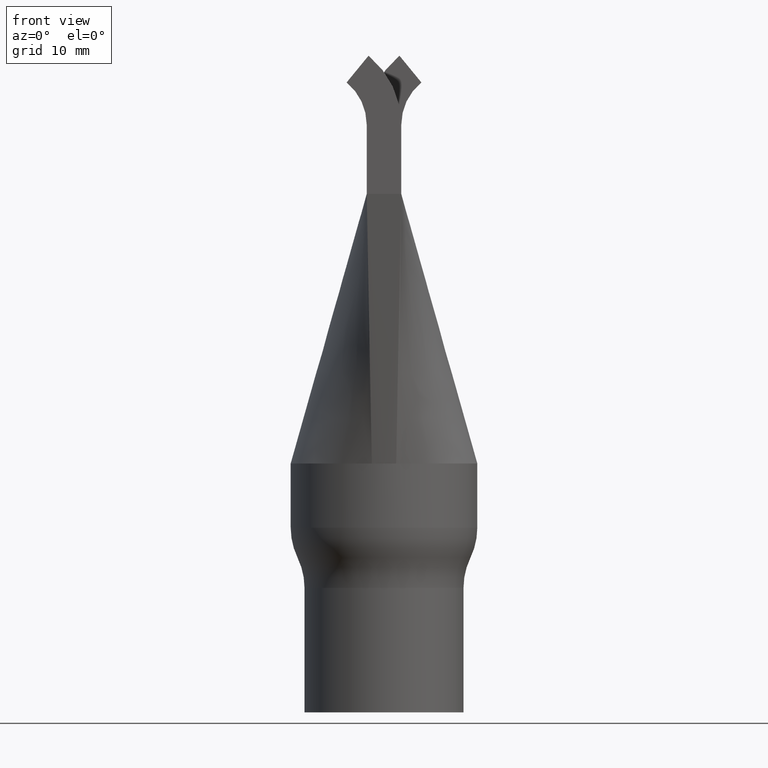
[diagram: clean part render]
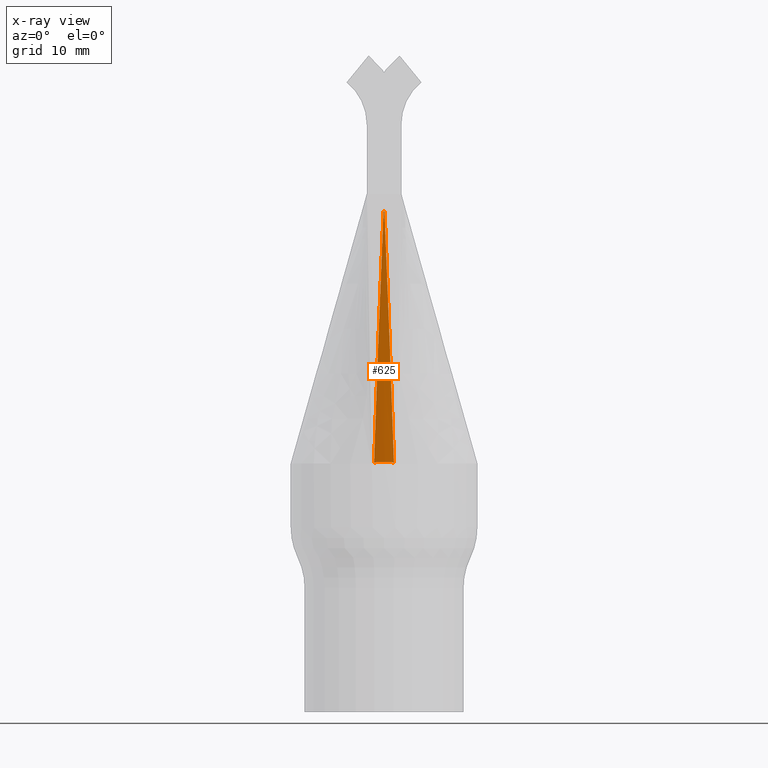
[diagram: x-ray — body ghosted, one internal face saturated and labeled with its STEP entity id]
A machine part, front view, then the same camera in x-ray: the body is ghosted and one INTERNAL B-rep face — a face not visible from any outside direction — is saturated and labeled: STEP entity #625.
In plain terms, the highlighted face is a freeform B-spline surface patch.
Its self-contained STEP definition (entity closure, byte-faithful):
#50 = CARTESIAN_POINT ( 'NONE',  ( 2.321615106192547200, -16.14736502562666900, 72.72473574889080800 ) ) ;
#106 = CARTESIAN_POINT ( 'NONE',  ( 1.719384111533413600, -12.62808548849466600, 48.22135070822230300 ) ) ;
#149 = CARTESIAN_POINT ( 'NONE',  ( -1.431531439504500000, -10.95882475798934600, 36.53796351132598400 ) ) ;
#161 = CARTESIAN_POINT ( 'NONE',  ( 1.413333491230777800, -10.87789478177494300, 35.96910463955476400 ) ) ;
#168 = CARTESIAN_POINT ( 'NONE',  ( 1.441852136286936500, -10.90509341624751000, 36.09030776148677700 ) ) ;
#473 = EDGE_LOOP ( 'NONE', ( #7619, #15773, #9632, #3063 ) ) ;
#625 = ADVANCED_FACE ( 'NONE', ( #7069 ), #13231, .F. ) ;
#719 = CARTESIAN_POINT ( 'NONE',  ( -2.166894006788201200, -16.14814254387894700, 72.72386519237017000 ) ) ;
#773 = CARTESIAN_POINT ( 'NONE',  ( -1.456329556163184200, -10.87224045734971500, 35.96964214111026300 ) ) ;
#823 = CARTESIAN_POINT ( 'NONE',  ( -1.271208810605728700, -10.89542364468774400, 35.96718643008043900 ) ) ;
#886 = CARTESIAN_POINT ( 'NONE',  ( -2.218469585927256300, -16.14789225880230800, 72.72414537951094400 ) ) ;
#935 = CARTESIAN_POINT ( 'NONE',  ( -2.373186391315689600, -16.14709474857392700, 72.72503843146532200 ) ) ;
#962 = CARTESIAN_POINT ( 'NONE',  ( 1.428495800141399700, -11.01814063073086000, 36.94112519827553600 ) ) ;
#981 = CARTESIAN_POINT ( 'NONE',  ( 1.301181299983906500, -10.89192834248433800, 35.96756888024632600 ) ) ;
#991 = CARTESIAN_POINT ( 'NONE',  ( -0.4826880595103361600, -10.99204035117396600, 36.17868429347084500 ) ) ;
#1006 = CARTESIAN_POINT ( 'NONE',  ( 0.07360767920296540400, -16.12265433952941500, 72.49999999999997200 ) ) ;
#1032 = CARTESIAN_POINT ( 'NONE',  ( 0.7287873620716958100, -10.94493745367367900, 35.96177075663486300 ) ) ;
#1082 = CARTESIAN_POINT ( 'NONE',  ( 1.224779746088823900, -12.66275040349328800, 48.21668933307088900 ) ) ;
#1137 = CARTESIAN_POINT ( 'NONE',  ( 1.651089961696522400, -16.15039620885026700, 72.72134333038130200 ) ) ;
#1191 = CARTESIAN_POINT ( 'NONE',  ( 1.738361626688563100, -12.62655219745722200, 48.22155730167699500 ) ) ;
#1197 = CARTESIAN_POINT ( 'NONE',  ( 0.9628086797302359800, -10.96043714089289300, 36.17865336242705600 ) ) ;
#1304 = CARTESIAN_POINT ( 'NONE',  ( 2.347400994588795700, -16.14723099717401000, 72.72488584053137100 ) ) ;
#1357 = CARTESIAN_POINT ( 'NONE',  ( 2.074456344173689600, -14.38529624166637600, 60.47334074095508800 ) ) ;
#1880 = CARTESIAN_POINT ( 'NONE',  ( -1.441852136287223200, -10.90509341624747300, 36.09030776148677700 ) ) ;
#1900 = CARTESIAN_POINT ( 'NONE',  ( -2.476594383371645900, -16.14653379043601300, 72.72565932857456500 ) ) ;
#1951 = CARTESIAN_POINT ( 'NONE',  ( -2.321615106193081400, -16.14736502562666900, 72.72473574889080800 ) ) ;
#1981 = CARTESIAN_POINT ( 'NONE',  ( 1.235793281833641000, -12.02237862484301300, 43.74246453546619800 ) ) ;
#2060 = CARTESIAN_POINT ( 'NONE',  ( -1.794514604572528900, -12.62183996273574300, 48.22220646863493000 ) ) ;
#2112 = CARTESIAN_POINT ( 'NONE',  ( -1.419478910769132600, -10.87709575968937000, 35.96921101892552700 ) ) ;
#2168 = CARTESIAN_POINT ( 'NONE',  ( -1.739985301849686100E-013, -12.69713648491714700, 48.21208690504057200 ) ) ;
#2217 = CARTESIAN_POINT ( 'NONE',  ( -0.6133598003290100500, -12.69058323954918100, 48.21296124772973700 ) ) ;
#2228 = CARTESIAN_POINT ( 'NONE',  ( -0.2419555311015224900, -10.99998358884605700, 36.17892452863836200 ) ) ;
#2269 = CARTESIAN_POINT ( 'NONE',  ( 1.377148476837168500, -12.65293182820197500, 48.21800816063365900 ) ) ;
#2323 = CARTESIAN_POINT ( 'NONE',  ( 1.960584347550206900, -16.14910811868461200, 72.72278443977353400 ) ) ;
#2375 = CARTESIAN_POINT ( 'NONE',  ( -1.624309777649698600, -14.40078074538607700, 60.47011979973081000 ) ) ;
#2399 = EDGE_CURVE ( 'NONE', #14735, #12513, #6368, .T. ) ;
#2425 = CARTESIAN_POINT ( 'NONE',  ( 1.437904232126725000, -10.87466809848976400, 35.96942658462247500 ) ) ;
#2466 = CARTESIAN_POINT ( 'NONE',  ( -1.093094096655873300, -12.58279181556009300, 47.58591685133841800 ) ) ;
#2477 = CARTESIAN_POINT ( 'NONE',  ( 1.785779653121713200, -12.62261708937675800, 48.22208776072553600 ) ) ;
#2527 = CARTESIAN_POINT ( 'NONE',  ( 1.681429081223114500, -12.63115207056955000, 48.22093752131291200 ) ) ;
#2639 = CARTESIAN_POINT ( 'NONE',  ( 1.331122331803721300, -10.88830940955974400, 35.96796488625823000 ) ) ;
#3063 = ORIENTED_EDGE ( 'NONE', *, *, #14423, .F. ) ;
#3103 = CARTESIAN_POINT ( 'NONE',  ( 0.07360767920296540400, -16.12265433952941500, 72.49999999999997200 ) ) ;
#3147 = CARTESIAN_POINT ( 'NONE',  ( -2.437668566931459500, -16.14674674696890100, 72.72542765894043300 ) ) ;
#3202 = CARTESIAN_POINT ( 'NONE',  ( -2.398971279997280900, -16.14695628121421200, 72.72519352145742700 ) ) ;
#3252 = CARTESIAN_POINT ( 'NONE',  ( -1.390928636803945500, -10.88079397445481300, 35.96878734336021900 ) ) ;
#3302 = CARTESIAN_POINT ( 'NONE',  ( -1.804463458734893600, -14.39511330305378500, 60.47129815632767700 ) ) ;
#3345 = EDGE_CURVE ( 'NONE', #4770, #12513, #10751, .T. ) ;
#3358 = CARTESIAN_POINT ( 'NONE',  ( -1.960584347550704300, -16.14910811868460500, 72.72278443977352000 ) ) ;
#3385 = CARTESIAN_POINT ( 'NONE',  ( 1.439335040235826300, -10.96119578443203600, 36.56095258997584100 ) ) ;
#3410 = CARTESIAN_POINT ( 'NONE',  ( 0.9706564100964109000, -10.92690913931698300, 35.96374202100509600 ) ) ;
#3464 = CARTESIAN_POINT ( 'NONE',  ( -1.444119968411752900, -14.40622170080651400, 60.46898870580745500 ) ) ;
#3480 = EDGE_CURVE ( 'NONE', #14735, #13733, #12410, .T. ) ;
#3516 = CARTESIAN_POINT ( 'NONE',  ( 1.151193016795653200, -10.90891031234774300, 35.96571085487016000 ) ) ;
#3568 = CARTESIAN_POINT ( 'NONE',  ( 1.211263831848480500, -10.90241424909465800, 35.96642152974863600 ) ) ;
#3623 = CARTESIAN_POINT ( 'NONE',  ( -0.7224936037642733000, -14.42164154671168700, 60.46578626341989300 ) ) ;
#3673 = CARTESIAN_POINT ( 'NONE',  ( 2.130790029397815900, -14.38308856544446500, 60.47379796153953200 ) ) ;
#3767 = CARTESIAN_POINT ( 'NONE',  ( -1.441852136287223200, -10.90509341624747300, 36.09030776148677700 ) ) ;
#3779 = CARTESIAN_POINT ( 'NONE',  ( 1.794514604532464500, -12.62183996274114300, 48.22220646863501500 ) ) ;
#3822 = CARTESIAN_POINT ( 'NONE',  ( -0.07360767920299674000, -16.12265433952940800, 72.49999999999995700 ) ) ;
#4389 = CARTESIAN_POINT ( 'NONE',  ( -2.051965920811623900, -14.38616030118338800, 60.47316090484970600 ) ) ;
#4422 = CARTESIAN_POINT ( 'NONE',  ( 1.401816673575014800, -11.18765270100070500, 38.08025088944707900 ) ) ;
#4446 = CARTESIAN_POINT ( 'NONE',  ( -2.424693294806751000, -16.14681773594465500, 72.72535043416581900 ) ) ;
#4491 = CARTESIAN_POINT ( 'NONE',  ( 1.441852136286936500, -10.90509341624751000, 36.09030776148677700 ) ) ;
#4500 = CARTESIAN_POINT ( 'NONE',  ( -1.211263831848777000, -10.90241424909462400, 35.96642152974865100 ) ) ;
#4559 = CARTESIAN_POINT ( 'NONE',  ( -1.151193016795936600, -10.90891031234770900, 35.96571085487016000 ) ) ;
#4611 = CARTESIAN_POINT ( 'NONE',  ( -1.091014147896192100, -10.91490992133745800, 35.96505457691513600 ) ) ;
#4621 = CARTESIAN_POINT ( 'NONE',  ( -1.441852136287223200, -10.90509341624747300, 36.09030776148677700 ) ) ;
#4636 = CARTESIAN_POINT ( 'NONE',  ( 1.411086963976409200, -11.13120890248852200, 37.70077766707315400 ) ) ;
#4660 = CARTESIAN_POINT ( 'NONE',  ( 1.857419552265645400, -16.14953748207316400, 72.72230406997611900 ) ) ;
#4711 = CARTESIAN_POINT ( 'NONE',  ( -0.8256205267238608800, -16.15283167941470700, 72.71862085062484500 ) ) ;
#4760 = CARTESIAN_POINT ( 'NONE',  ( 1.714404682268238800, -14.39806026767588100, 60.47068534669249800 ) ) ;
#4769 = CARTESIAN_POINT ( 'NONE',  ( 0.4814267857509571000, -10.99210676454654000, 36.17868500306043000 ) ) ;
#4770 = VERTEX_POINT ( 'NONE', #3103 ) ;
#4805 = CARTESIAN_POINT ( 'NONE',  ( 1.804463458734448600, -14.39511330305379900, 60.47129815632767700 ) ) ;
#4853 = CARTESIAN_POINT ( 'NONE',  ( -1.238363637979476500, -16.15168546575673100, 72.71990203478075900 ) ) ;
#5014 = CARTESIAN_POINT ( 'NONE',  ( 1.939488405300139800, -14.39035330592761300, 60.47228837329497300 ) ) ;
#5040 = CARTESIAN_POINT ( 'NONE',  ( 0.07360767920296540400, -16.12265433952941500, 72.49999999999997200 ) ) ;
#5121 = CARTESIAN_POINT ( 'NONE',  ( 2.398971279996748000, -16.14695628121421200, 72.72519352145742700 ) ) ;
#5252 = B_SPLINE_CURVE_WITH_KNOTS ( 'NONE', 3,
 ( #5653, #3385, #962, #4636, #4422, #15546, #13068, #14310, #1981, #10632, #13340, #8512, #8461, #7378, #12193, #1006 ),
 .UNSPECIFIED., .F., .F.,
 ( 4, 2, 2, 2, 2, 2, 2, 4 ),
 ( 0.0000000000000000000, 0.02895907983077067000, 0.05791815966154133900, 0.1158363193230821700, 0.2316726386461638300, 0.4633452772923275500, 0.6950179159384912700, 0.9266905545846546600 ),
 .UNSPECIFIED. ) ;
#5619 = CARTESIAN_POINT ( 'NONE',  ( -1.361029693069296000, -10.88456711239510200, 35.96837442343155500 ) ) ;
#5653 = CARTESIAN_POINT ( 'NONE',  ( 1.441852136286936500, -10.90509341624751000, 36.09030776148677700 ) ) ;
#5679 = CARTESIAN_POINT ( 'NONE',  ( -1.643448613509934900, -12.63411675834182000, 48.22053830220494300 ) ) ;
#5733 = CARTESIAN_POINT ( 'NONE',  ( -1.529436064471202400, -12.64270493798738900, 48.21938243500212500 ) ) ;
#5789 = CARTESIAN_POINT ( 'NONE',  ( -1.836380027126015600, -12.61850681631671400, 48.22258222763871800 ) ) ;
#5842 = CARTESIAN_POINT ( 'NONE',  ( -1.825913671134025100, -12.61934009664675200, 48.22248829074013100 ) ) ;
#5897 = CARTESIAN_POINT ( 'NONE',  ( -0.3066796881684579200, -12.69713648491714300, 48.21208690504057200 ) ) ;
#5953 = CARTESIAN_POINT ( 'NONE',  ( -1.083354964771716700, -14.41438497559394500, 60.46729318884807500 ) ) ;
#6001 = CARTESIAN_POINT ( 'NONE',  ( -0.4128102641436832100, -16.15340553328644200, 72.71798014136531700 ) ) ;
#6054 = CARTESIAN_POINT ( 'NONE',  ( -2.607742150270519800E-013, -16.15340553328644200, 72.71798014136531700 ) ) ;
#6112 = CARTESIAN_POINT ( 'NONE',  ( 1.624309777649265000, -14.40078074538609700, 60.47011979973082400 ) ) ;
#6150 = CARTESIAN_POINT ( 'NONE',  ( -1.251433825592011700, -11.95612486328916000, 43.28995587241923500 ) ) ;
#6161 = CARTESIAN_POINT ( 'NONE',  ( 2.096943851472941000, -14.38441804071486800, 60.47352353937945000 ) ) ;
#6210 = CARTESIAN_POINT ( 'NONE',  ( 1.428691571447930000, -10.87588192908956600, 35.96931880177400100 ) ) ;
#6264 = CARTESIAN_POINT ( 'NONE',  ( 1.643448613509634700, -12.63411675834180200, 48.22053830220492900 ) ) ;
#6313 = CARTESIAN_POINT ( 'NONE',  ( 2.270043329400051000, -16.14763308253198900, 72.72443556560968100 ) ) ;
#6337 = CARTESIAN_POINT ( 'NONE',  ( 0.02453589412754438400, -16.12266453874406800, 72.50000000000000000 ) ) ;
#6350 = CARTESIAN_POINT ( 'NONE',  ( -1.412557933803572300, -11.11765772107546900, 37.60869792153120300 ) ) ;
#6362 = CARTESIAN_POINT ( 'NONE',  ( 1.825913671166219600, -12.61934009664240500, 48.22248829074033000 ) ) ;
#6368 = B_SPLINE_CURVE_WITH_KNOTS ( 'NONE', 3,
 ( #3767, #149, #11238, #6350, #13659, #14847, #15008, #8794, #6150, #2466, #12516, #13605, #16009, #13713, #14796, #3822 ),
 .UNSPECIFIED., .F., .F.,
 ( 4, 2, 2, 2, 2, 2, 2, 4 ),
 ( 0.0000000000000000000, 0.02914241174612548400, 0.05828482349225096900, 0.1165696469845014000, 0.2331392939690028500, 0.4662785879380057000, 0.6994178819070084900, 0.9325571758760107200 ),
 .UNSPECIFIED. ) ;
#6870 = CARTESIAN_POINT ( 'NONE',  ( -1.405865206422029400, -10.87886117933487300, 35.96899887415658300 ) ) ;
#6924 = CARTESIAN_POINT ( 'NONE',  ( -1.453332842211700900, -12.64802254055627600, 48.21866757441504300 ) ) ;
#6972 = CARTESIAN_POINT ( 'NONE',  ( -1.776297362883553700, -12.62340920389776700, 48.22198096952463000 ) ) ;
#7026 = CARTESIAN_POINT ( 'NONE',  ( -2.347400994589330400, -16.14723099717401000, 72.72488584053137100 ) ) ;
#7069 = FACE_OUTER_BOUND ( 'NONE', #473, .T. ) ;
#7080 = CARTESIAN_POINT ( 'NONE',  ( -2.108187605123030400, -14.38397894023909800, 60.47361493859164500 ) ) ;
#7133 = CARTESIAN_POINT ( 'NONE',  ( 1.529436064470860900, -12.64270493798737100, 48.21938243500211000 ) ) ;
#7185 = CARTESIAN_POINT ( 'NONE',  ( -2.265998827800361600E-013, -14.42527100910178600, 60.46503352320311800 ) ) ;
#7239 = CARTESIAN_POINT ( 'NONE',  ( 0.4866293143808525500, -10.96096786833659700, 35.96001810734236400 ) ) ;
#7294 = CARTESIAN_POINT ( 'NONE',  ( -1.444735193607284300, -16.15111235892774000, 72.72054262685873000 ) ) ;
#7348 = CARTESIAN_POINT ( 'NONE',  ( -1.377148476837482200, -12.65293182820194000, 48.21800816063365900 ) ) ;
#7378 = CARTESIAN_POINT ( 'NONE',  ( 0.2801601660884423000, -15.26107328063776500, 66.39173286028281500 ) ) ;
#7404 = CARTESIAN_POINT ( 'NONE',  ( 1.405865206421735600, -10.87886117933491200, 35.96899887415658300 ) ) ;
#7512 = CARTESIAN_POINT ( 'NONE',  ( 2.051965920811166000, -14.38616030118340400, 60.47316090484970600 ) ) ;
#7560 = CARTESIAN_POINT ( 'NONE',  ( 1.456329556162224900, -10.87224045734984300, 35.96964214111028500 ) ) ;
#7588 = CARTESIAN_POINT ( 'NONE',  ( -0.07360767920299674000, -16.12265433952940800, 72.49999999999995700 ) ) ;
#7618 = CARTESIAN_POINT ( 'NONE',  ( 2.476594383370903900, -16.14653379043601700, 72.72565932857457900 ) ) ;
#7619 = ORIENTED_EDGE ( 'NONE', *, *, #3480, .F. ) ;
#8113 = CARTESIAN_POINT ( 'NONE',  ( -1.605444430497024100, -12.63697948489034300, 48.22015301313733500 ) ) ;
#8114 = CARTESIAN_POINT ( 'NONE',  ( -0.07360767920299674000, -16.12265433952940800, 72.49999999999995700 ) ) ;
#8163 = CARTESIAN_POINT ( 'NONE',  ( -1.719384111532807200, -12.62808548849463400, 48.22135070822228200 ) ) ;
#8222 = CARTESIAN_POINT ( 'NONE',  ( -1.681429081222570300, -12.63115207056952400, 48.22093752131289100 ) ) ;
#8274 = CARTESIAN_POINT ( 'NONE',  ( -2.450643839056168400, -16.14667575799314400, 72.72550488371506100 ) ) ;
#8326 = CARTESIAN_POINT ( 'NONE',  ( -2.119069286107873900, -14.38354085278823300, 60.47371330059678500 ) ) ;
#8382 = CARTESIAN_POINT ( 'NONE',  ( 1.605444430496709900, -12.63697948489032500, 48.22015301313732000 ) ) ;
#8434 = CARTESIAN_POINT ( 'NONE',  ( 0.7224936037638228800, -14.42164154671169200, 60.46578626341989300 ) ) ;
#8461 = CARTESIAN_POINT ( 'NONE',  ( 0.5265913681537896000, -14.40104388251367100, 60.30893090455499100 ) ) ;
#8486 = CARTESIAN_POINT ( 'NONE',  ( 0.8498663859171173800, -10.93692224634221900, 35.96264708128110500 ) ) ;
#8512 = CARTESIAN_POINT ( 'NONE',  ( 0.6620601019809081400, -13.97158290540480300, 57.27873416767047100 ) ) ;
#8535 = CARTESIAN_POINT ( 'NONE',  ( 0.3066796881681099800, -12.69713648491715000, 48.21208690504057200 ) ) ;
#8594 = CARTESIAN_POINT ( 'NONE',  ( -1.857419552266143600, -16.14953748207315700, 72.72230406997610400 ) ) ;
#8647 = CARTESIAN_POINT ( 'NONE',  ( 2.463619111202425000, -16.14660477248232700, 72.72558210692673700 ) ) ;
#8696 = CARTESIAN_POINT ( 'NONE',  ( 2.108187605122566800, -14.38397894023911400, 60.47361493859163800 ) ) ;
#8750 = CARTESIAN_POINT ( 'NONE',  ( 2.424693294806163000, -16.14681773594465500, 72.72535043416579000 ) ) ;
#8794 = CARTESIAN_POINT ( 'NONE',  ( -1.298611002306358200, -11.74703067167606100, 41.86450271597196600 ) ) ;
#8807 = CARTESIAN_POINT ( 'NONE',  ( 2.119069286107128300, -14.38354085278825200, 60.47371330059677800 ) ) ;
#9369 = CARTESIAN_POINT ( 'NONE',  ( -1.738361626687925800, -12.62655219745719000, 48.22155730167697400 ) ) ;
#9416 = CARTESIAN_POINT ( 'NONE',  ( -2.029472675372337800, -14.38701021705956500, 60.47298402974583800 ) ) ;
#9465 = CARTESIAN_POINT ( 'NONE',  ( -1.939488405300586300, -14.39035330592759400, 60.47228837329496500 ) ) ;
#9512 = CARTESIAN_POINT ( 'NONE',  ( -1.804980959996640900, -12.62100667236631700, 48.22230041009694900 ) ) ;
#9569 = CARTESIAN_POINT ( 'NONE',  ( -0.9706564100967034500, -10.92690913931695600, 35.96374202100509600 ) ) ;
#9622 = CARTESIAN_POINT ( 'NONE',  ( -1.224779746089044600, -12.66275040349326600, 48.21668933307088900 ) ) ;
#9632 = ORIENTED_EDGE ( 'NONE', *, *, #3345, .F. ) ;
#9669 = CARTESIAN_POINT ( 'NONE',  ( 1.444735193606770900, -16.15111235892774000, 72.72054262685871600 ) ) ;
#9720 = CARTESIAN_POINT ( 'NONE',  ( 1.453332842211340700, -12.64802254055631900, 48.21866757441504300 ) ) ;
#9777 = CARTESIAN_POINT ( 'NONE',  ( 1.271208810605431100, -10.89542364468777800, 35.96718643008042400 ) ) ;
#9829 = CARTESIAN_POINT ( 'NONE',  ( 1.836380027143090100, -12.61850681631445100, 48.22258222763874600 ) ) ;
#9882 = CARTESIAN_POINT ( 'NONE',  ( 2.154231516109504300, -14.38218399488760100, 60.47396728155510500 ) ) ;
#9937 = CARTESIAN_POINT ( 'NONE',  ( 2.437668566930896800, -16.14674674696890100, 72.72542765894041800 ) ) ;
#9992 = CARTESIAN_POINT ( 'NONE',  ( 2.142510772688503100, -14.38263627810068000, 60.47388262248227900 ) ) ;
#10039 = CARTESIAN_POINT ( 'NONE',  ( 1.375983373701625600, -10.88269596381283900, 35.96857919201824700 ) ) ;
#10600 = CARTESIAN_POINT ( 'NONE',  ( -2.411863724338076100, -16.14688704753435600, 72.72527106645347300 ) ) ;
#10632 = CARTESIAN_POINT ( 'NONE',  ( 1.065960075557719900, -12.67883204321188900, 48.24874449374029700 ) ) ;
#10653 = CARTESIAN_POINT ( 'NONE',  ( -1.447116893699478000, -10.87345427457674400, 35.96953436440205100 ) ) ;
#10712 = CARTESIAN_POINT ( 'NONE',  ( -1.894480089778688900, -14.39193997163632400, 60.47195830097253800 ) ) ;
#10751 = B_SPLINE_CURVE_WITH_KNOTS ( 'NONE', 3,
 ( #5040, #6337, #14992, #7588 ),
 .UNSPECIFIED., .F., .F.,
 ( 4, 4 ),
 ( 0.0000000000000000000, 0.0001472153584059465400 ),
 .UNSPECIFIED. ) ;
#10768 = CARTESIAN_POINT ( 'NONE',  ( -2.165952259661383800, -14.38173171580465300, 60.47405193875677300 ) ) ;
#10819 = CARTESIAN_POINT ( 'NONE',  ( 0.4128102641431618000, -16.15340553328644200, 72.71798014136531700 ) ) ;
#10870 = CARTESIAN_POINT ( 'NONE',  ( -1.651089961697021600, -16.15039620885026000, 72.72134333038128800 ) ) ;
#10923 = CARTESIAN_POINT ( 'NONE',  ( -1.263785645275438400, -14.41075669003507200, 60.46804665156217600 ) ) ;
#10975 = CARTESIAN_POINT ( 'NONE',  ( -1.072086502531695000, -12.67093564196209800, 48.21559225096523000 ) ) ;
#11032 = CARTESIAN_POINT ( 'NONE',  ( 0.8256205267233502900, -16.15283167941470700, 72.71862085062484500 ) ) ;
#11089 = CARTESIAN_POINT ( 'NONE',  ( 2.373186391315158100, -16.14709474857392700, 72.72503843146532200 ) ) ;
#11238 = CARTESIAN_POINT ( 'NONE',  ( -1.427138865244793800, -11.01166502915493200, 36.89531359770899100 ) ) ;
#11252 = CARTESIAN_POINT ( 'NONE',  ( 1.419478910769134800, -10.87709575968936800, 35.96921101892552700 ) ) ;
#11307 = CARTESIAN_POINT ( 'NONE',  ( 2.165952259660740800, -14.38173171580467800, 60.47405193875678700 ) ) ;
#11802 = CARTESIAN_POINT ( 'NONE',  ( -1.437904232127724000, -10.87466809848963000, 35.96942658462247500 ) ) ;
#11856 = CARTESIAN_POINT ( 'NONE',  ( -1.428691571448428300, -10.87588192908950000, 35.96931880177400100 ) ) ;
#11909 = CARTESIAN_POINT ( 'NONE',  ( -1.301181299984204500, -10.89192834248430400, 35.96756888024634000 ) ) ;
#11965 = CARTESIAN_POINT ( 'NONE',  ( -2.130790029398360800, -14.38308856544444900, 60.47379796153953900 ) ) ;
#12014 = CARTESIAN_POINT ( 'NONE',  ( -2.074456344174152400, -14.38529624166635800, 60.47334074095509500 ) ) ;
#12064 = CARTESIAN_POINT ( 'NONE',  ( 1.444119968411317700, -14.40622170080653100, 60.46898870580747600 ) ) ;
#12113 = CARTESIAN_POINT ( 'NONE',  ( -0.3612468064489592300, -14.42527100910178500, 60.46503352320311800 ) ) ;
#12125 = CARTESIAN_POINT ( 'NONE',  ( 0.2404610260137281800, -11.00001636039153900, 36.17892520387786000 ) ) ;
#12166 = CARTESIAN_POINT ( 'NONE',  ( -0.9191776017974666600, -12.67748484115779200, 48.21471524988673700 ) ) ;
#12177 = CARTESIAN_POINT ( 'NONE',  ( -0.9630572204187036700, -10.96040417296871200, 36.17865397475009100 ) ) ;
#12193 = CARTESIAN_POINT ( 'NONE',  ( 0.1690157361745494600, -15.69158442466902800, 69.44350506582092900 ) ) ;
#12216 = CARTESIAN_POINT ( 'NONE',  ( -0.2433149040479646600, -10.96900196073247500, 35.95914028687876400 ) ) ;
#12271 = CARTESIAN_POINT ( 'NONE',  ( -0.7287873620719844700, -10.94493745367366200, 35.96177075663489100 ) ) ;
#12324 = CARTESIAN_POINT ( 'NONE',  ( 1.804980959995109000, -12.62100667236655800, 48.22230041009717600 ) ) ;
#12410 = B_SPLINE_CURVE_WITH_KNOTS ( 'NONE', 3,
 ( #4621, #15778, #12177, #991, #2228, #12125, #4769, #1197, #14870, #168 ),
 .UNSPECIFIED., .F., .F.,
 ( 4, 2, 2, 2, 4 ),
 ( 0.0000000000000000000, 0.0007221140133359568400, 0.001444228026671913300, 0.002166342040007869800, 0.002888456053343826100 ),
 .UNSPECIFIED. ) ;
#12420 = CARTESIAN_POINT ( 'NONE',  ( 1.757332782405530500, -12.62499343293999700, 48.22176738712282400 ) ) ;
#12513 = VERTEX_POINT ( 'NONE', #8114 ) ;
#12516 = CARTESIAN_POINT ( 'NONE',  ( -0.9659103463458942300, -13.00081534708885500, 50.48472311929573000 ) ) ;
#12529 = CARTESIAN_POINT ( 'NONE',  ( 2.411863724337543100, -16.14688704753435600, 72.72527106645347300 ) ) ;
#13041 = CARTESIAN_POINT ( 'NONE',  ( -1.757332782406089400, -12.62499343293992600, 48.22176738712282400 ) ) ;
#13068 = CARTESIAN_POINT ( 'NONE',  ( 1.353543916138930700, -11.46810100592215200, 39.97348869842777900 ) ) ;
#13091 = CARTESIAN_POINT ( 'NONE',  ( -1.375983373701930900, -10.88269596381280000, 35.96857919201822500 ) ) ;
#13147 = CARTESIAN_POINT ( 'NONE',  ( -2.463619111202835400, -16.14660477248232700, 72.72558210692673700 ) ) ;
#13197 = CARTESIAN_POINT ( 'NONE',  ( -1.331122331804026200, -10.88830940955970700, 35.96796488625820800 ) ) ;
#13231 = B_SPLINE_SURFACE_WITH_KNOTS ( 'NONE', 3, 3, ( 
 ( #773, #5789, #10768, #1900 ),
 ( #10653, #5842, #15664, #13147 ),
 ( #11802, #14391, #15714, #8274 ),
 ( #11856, #9512, #11965, #3147 ),
 ( #2112, #2060, #8326, #4446 ),
 ( #14445, #14494, #7080, #10600 ),
 ( #6870, #6972, #15615, #3202 ),
 ( #3252, #13041, #12014, #935 ),
 ( #13091, #9369, #4389, #7026 ),
 ( #5619, #8163, #9416, #1951 ),
 ( #13197, #8222, #14284, #15513 ),
 ( #11909, #5679, #9465, #886 ),
 ( #823, #8113, #10712, #719 ),
 ( #4500, #5733, #3302, #14334 ),
 ( #4559, #6924, #15566, #3358 ),
 ( #4611, #7348, #2375, #8594 ),
 ( #9569, #9622, #3464, #10870 ),
 ( #14596, #10975, #10923, #7294 ),
 ( #12271, #12166, #5953, #4853 ),
 ( #13309, #2217, #3623, #4711 ),
 ( #12216, #5897, #12113, #6001 ),
 ( #15815, #2168, #7185, #6054 ),
 ( #13412, #8535, #14646, #10819 ),
 ( #7239, #14544, #8434, #11032 ),
 ( #1032, #14694, #13361, #15862 ),
 ( #8486, #15918, #15972, #9669 ),
 ( #3410, #1082, #12064, #1137 ),
 ( #13516, #2269, #6112, #4660 ),
 ( #3516, #9720, #4760, #2323 ),
 ( #3568, #7133, #4805, #15765 ),
 ( #9777, #8382, #13464, #14751 ),
 ( #981, #6264, #5014, #13565 ),
 ( #2639, #2527, #13620, #6313 ),
 ( #13672, #106, #14914, #50 ),
 ( #10039, #1191, #7512, #1304 ),
 ( #14967, #12420, #1357, #11089 ),
 ( #7404, #15022, #6161, #5121 ),
 ( #161, #2477, #8696, #12529 ),
 ( #11252, #3779, #8807, #8750 ),
 ( #6210, #12324, #3673, #9937 ),
 ( #2425, #16022, #9992, #14808 ),
 ( #13772, #6362, #9882, #8647 ),
 ( #7560, #9829, #11307, #7618 ) ),
 .UNSPECIFIED., .F., .F., .F.,
 ( 4, 3, 3, 3, 3, 3, 3, 3, 3, 3, 3, 3, 3, 3, 4 ),
 ( 4, 4 ),
 ( -0.008595280724005805200, -0.0006484794626940167600, 0.007298321798617771700, 0.02319192432124134900, 0.05497912936648850100, 0.1185535394569828100, 0.2457023596379714300, 0.4999999999999486500, 0.7542976403619259300, 0.8814464605429145300, 0.9450208706334088900, 0.9768080756786560200, 0.9927016782012796400, 1.000648479462591400, 1.008595280723903100 ),
 ( -0.01000000000000000000, 0.9325343552432462400 ),
 .UNSPECIFIED. ) ;
#13309 = CARTESIAN_POINT ( 'NONE',  ( -0.4866293143811451500, -10.96096786833658500, 35.96001810734238500 ) ) ;
#13340 = CARTESIAN_POINT ( 'NONE',  ( 0.9320410527861138200, -13.11042239871902000, 51.24775736306674600 ) ) ;
#13361 = CARTESIAN_POINT ( 'NONE',  ( 1.083354964771268400, -14.41438497559395400, 60.46729318884807500 ) ) ;
#13412 = CARTESIAN_POINT ( 'NONE',  ( 0.2433149040476713700, -10.96900196073248200, 35.95914028687876400 ) ) ;
#13464 = CARTESIAN_POINT ( 'NONE',  ( 1.894480089778242800, -14.39193997163634200, 60.47195830097253800 ) ) ;
#13516 = CARTESIAN_POINT ( 'NONE',  ( 1.091014147895905700, -10.91490992133749000, 35.96505457691513600 ) ) ;
#13565 = CARTESIAN_POINT ( 'NONE',  ( 2.218469585926744300, -16.14789225880231200, 72.72414537951094400 ) ) ;
#13605 = CARTESIAN_POINT ( 'NONE',  ( -0.6988812104380838200, -13.85537568871928500, 56.46137814638096600 ) ) ;
#13620 = CARTESIAN_POINT ( 'NONE',  ( 1.984486184493310200, -14.38871004881194100, 60.47263027953810200 ) ) ;
#13659 = CARTESIAN_POINT ( 'NONE',  ( -1.404711934637459200, -11.17049974178699400, 37.96468646013434500 ) ) ;
#13672 = CARTESIAN_POINT ( 'NONE',  ( 1.361029693068990900, -10.88456711239514100, 35.96837442343157700 ) ) ;
#13713 = CARTESIAN_POINT ( 'NONE',  ( -0.2986859034829830200, -15.19130681825532000, 65.89718889537306300 ) ) ;
#13733 = VERTEX_POINT ( 'NONE', #4491 ) ;
#13772 = CARTESIAN_POINT ( 'NONE',  ( 1.447116893698137600, -10.87345427457692400, 35.96953436440205100 ) ) ;
#14284 = CARTESIAN_POINT ( 'NONE',  ( -1.984486184493766700, -14.38871004881192500, 60.47263027953810900 ) ) ;
#14310 = CARTESIAN_POINT ( 'NONE',  ( 1.287218838622088000, -11.80194599659193100, 42.23828415679179900 ) ) ;
#14334 = CARTESIAN_POINT ( 'NONE',  ( -2.063742848510090200, -16.14864311403221500, 72.72330481808862100 ) ) ;
#14391 = CARTESIAN_POINT ( 'NONE',  ( -1.815447315420752900, -12.62017338199688900, 48.22239435155896800 ) ) ;
#14423 = EDGE_CURVE ( 'NONE', #13733, #4770, #5252, .T. ) ;
#14445 = CARTESIAN_POINT ( 'NONE',  ( -1.413333491231071500, -10.87789478177490400, 35.96910463955476400 ) ) ;
#14494 = CARTESIAN_POINT ( 'NONE',  ( -1.785779653122286000, -12.62261708937668700, 48.22208776072553600 ) ) ;
#14544 = CARTESIAN_POINT ( 'NONE',  ( 0.6133598003279208100, -12.69058323954912400, 48.21296124772971600 ) ) ;
#14596 = CARTESIAN_POINT ( 'NONE',  ( -0.8498663859174040400, -10.93692224634219900, 35.96264708128114100 ) ) ;
#14646 = CARTESIAN_POINT ( 'NONE',  ( 0.3612468064485061500, -14.42527100910178800, 60.46503352320312500 ) ) ;
#14694 = CARTESIAN_POINT ( 'NONE',  ( 0.9191776017967047100, -12.67748484115767800, 48.21471524988670900 ) ) ;
#14735 = VERTEX_POINT ( 'NONE', #1880 ) ;
#14751 = CARTESIAN_POINT ( 'NONE',  ( 2.166894006787689600, -16.14814254387895100, 72.72386519237017000 ) ) ;
#14796 = CARTESIAN_POINT ( 'NONE',  ( -0.1775817697101073300, -15.65297852837008500, 69.17008976465832900 ) ) ;
#14808 = CARTESIAN_POINT ( 'NONE',  ( 2.450643839055630700, -16.14667575799314400, 72.72550488371506100 ) ) ;
#14847 = CARTESIAN_POINT ( 'NONE',  ( -1.379301586747452500, -11.32835111975187900, 39.02899649777516800 ) ) ;
#14870 = CARTESIAN_POINT ( 'NONE',  ( 1.202717659063631700, -10.93671135326862200, 36.18024663957289300 ) ) ;
#14914 = CARTESIAN_POINT ( 'NONE',  ( 2.029472675371880400, -14.38701021705958300, 60.47298402974583800 ) ) ;
#14967 = CARTESIAN_POINT ( 'NONE',  ( 1.390928636803651500, -10.88079397445485000, 35.96878734336021900 ) ) ;
#14992 = CARTESIAN_POINT ( 'NONE',  ( -0.02453589412760392300, -16.12266453874406500, 72.50000000000000000 ) ) ;
#15008 = CARTESIAN_POINT ( 'NONE',  ( -1.360015711623941500, -11.43282756298722600, 39.73479085003664600 ) ) ;
#15022 = CARTESIAN_POINT ( 'NONE',  ( 1.776297362882985700, -12.62340920389783800, 48.22198096952463000 ) ) ;
#15513 = CARTESIAN_POINT ( 'NONE',  ( -2.270043329400583100, -16.14763308253198900, 72.72443556560968100 ) ) ;
#15546 = CARTESIAN_POINT ( 'NONE',  ( 1.373557049993724400, -11.35636648545411700, 39.21724886245956300 ) ) ;
#15566 = CARTESIAN_POINT ( 'NONE',  ( -1.714404682268671400, -14.39806026767585900, 60.47068534669248400 ) ) ;
#15615 = CARTESIAN_POINT ( 'NONE',  ( -2.096943851473404200, -14.38441804071485000, 60.47352353937945700 ) ) ;
#15664 = CARTESIAN_POINT ( 'NONE',  ( -2.154231516109866600, -14.38218399488758700, 60.47396728155510500 ) ) ;
#15714 = CARTESIAN_POINT ( 'NONE',  ( -2.142510772688848200, -14.38263627810066400, 60.47388262248228600 ) ) ;
#15765 = CARTESIAN_POINT ( 'NONE',  ( 2.063742848509580300, -16.14864311403221800, 72.72330481808862100 ) ) ;
#15773 = ORIENTED_EDGE ( 'NONE', *, *, #2399, .T. ) ;
#15778 = CARTESIAN_POINT ( 'NONE',  ( -1.202717056414351900, -10.93671143294985100, 36.18024663864316900 ) ) ;
#15815 = CARTESIAN_POINT ( 'NONE',  ( -1.466841371009927700E-013, -10.96900196073247900, 35.95914028687876400 ) ) ;
#15862 = CARTESIAN_POINT ( 'NONE',  ( 1.238363637978964000, -16.15168546575673100, 72.71990203478075900 ) ) ;
#15918 = CARTESIAN_POINT ( 'NONE',  ( 1.072086502531096400, -12.67093564196195600, 48.21559225096519400 ) ) ;
#15972 = CARTESIAN_POINT ( 'NONE',  ( 1.263785645274991200, -14.41075669003508300, 60.46804665156216900 ) ) ;
#16009 = CARTESIAN_POINT ( 'NONE',  ( -0.5595166481121830500, -14.29238196881370000, 59.54173535213309500 ) ) ;
#16022 = CARTESIAN_POINT ( 'NONE',  ( 1.815447315457753700, -12.62017338199197500, 48.22239435155931600 ) ) ;